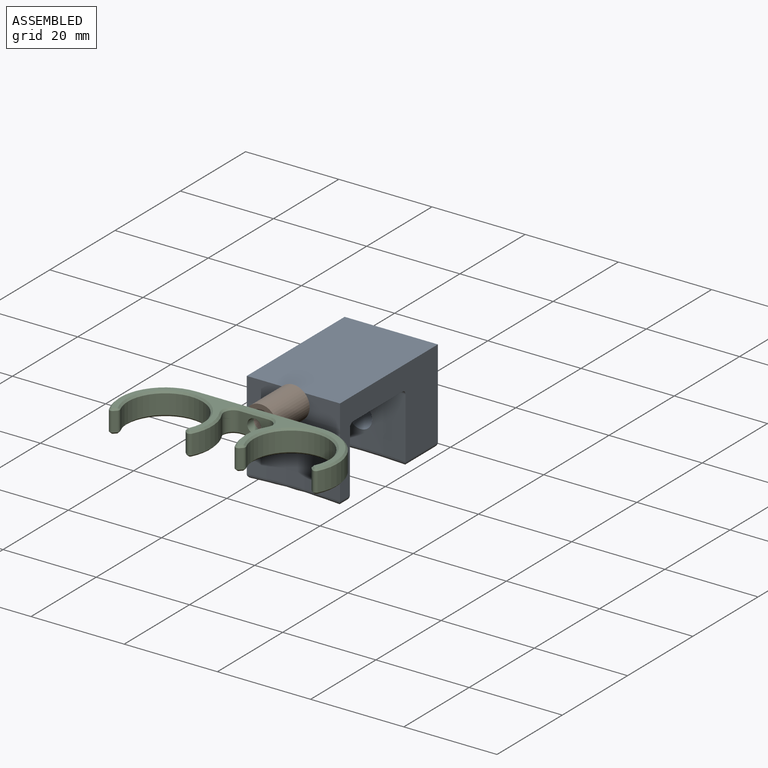
[diagram: assembled view]
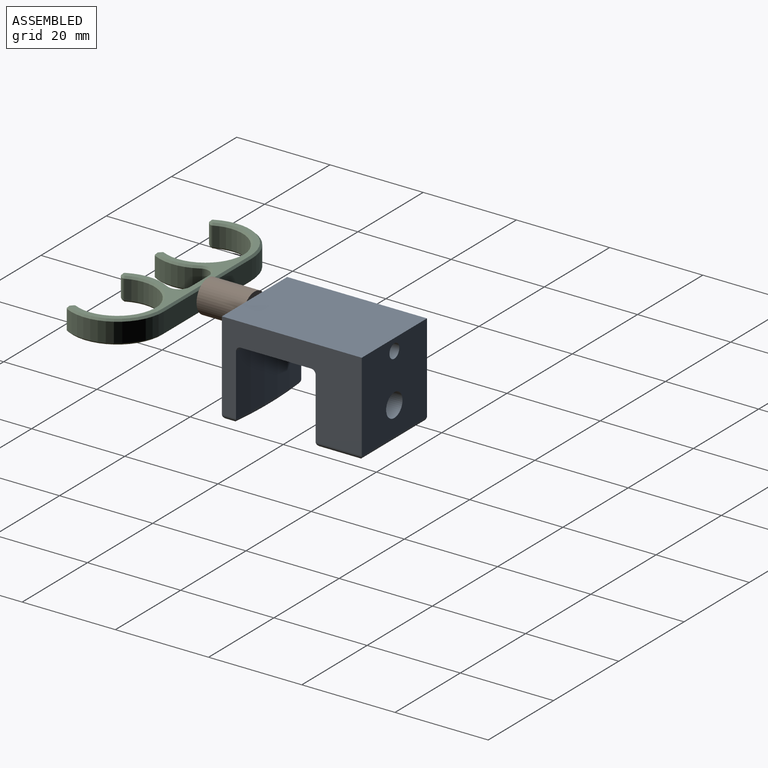
[diagram: assembled view, second angle]
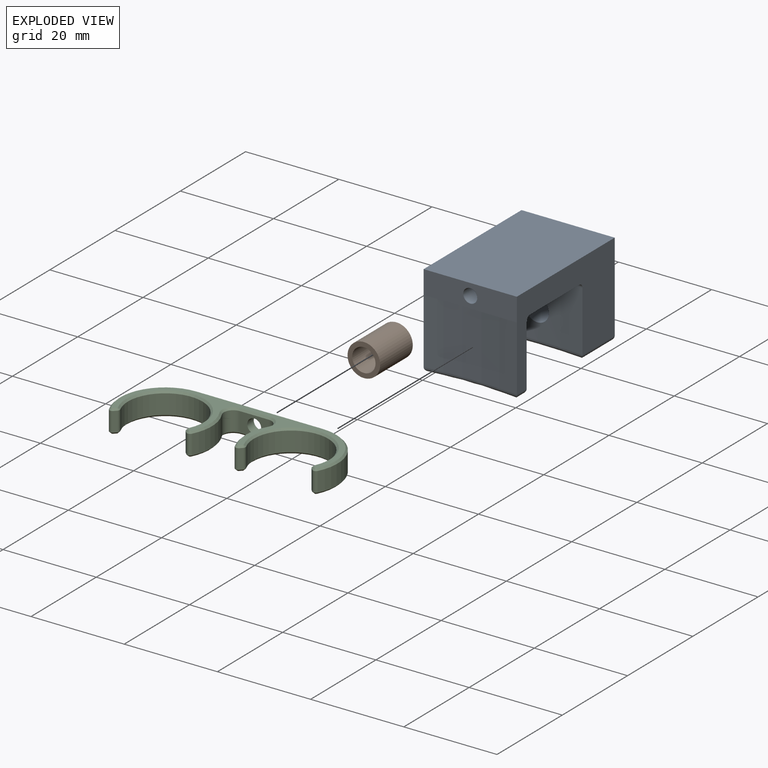
[diagram: exploded view]
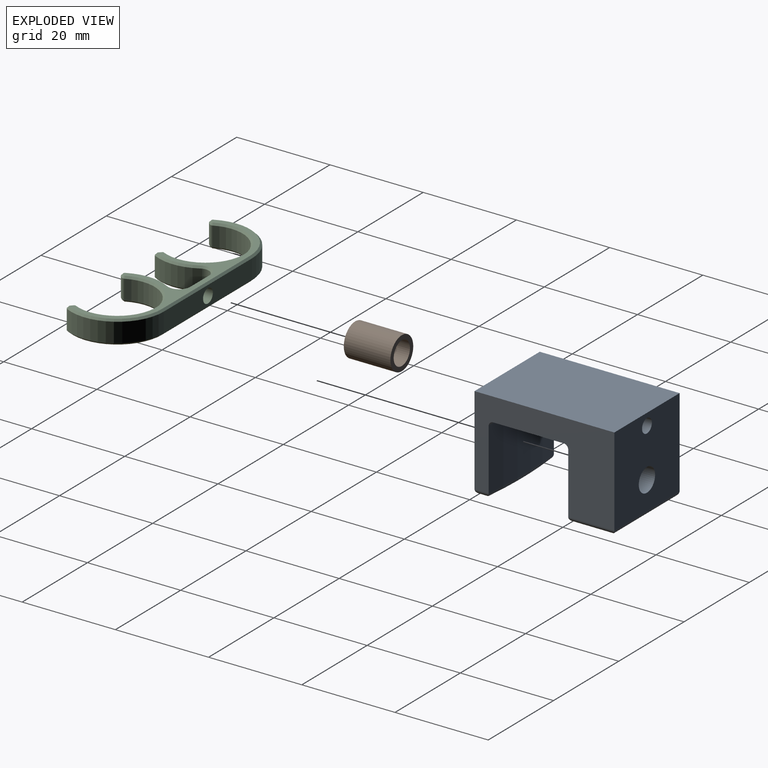
[diagram: exploded view, second angle]
ASSEMBLY  parts=3 mates=2
PART A: 24 faces, bbox 20.6x30x20 mm
  f0: cylinder r=105mm len=20mm, axis (0,0,1), area 240.8mm2, adj f3,f5,f13,f14,f16
  f1: plane 20x15.56mm, normal (0,0,-1), area 300.5mm2, adj f3,f5,f14,f19
  f2: plane 20x0.59mm, normal (0,0,-1), area 7.9mm2, adj f6,f9
  f3: plane 30.05x19.05mm, normal (1,0,0), area 331.1mm2, adj f0,f1,f4,f6,f7,f8,f9,f14
  f4: plane 20x19mm, normal (0,1,0), area 353.3mm2, adj f3,f5,f7,f12,f13,f17
  f5: plane 30.05x19.05mm, normal (-1,0,0), area 331.1mm2, adj f0,f1,f4,f6,f7,f8,f9,f14
  f6: plane 20x5mm, normal (0,-1,0), area 92.9mm2, adj f2,f3,f5,f7,f12
  f7: plane 30x20mm, normal (0,0,1), area 600mm2, adj f3,f4,f5,f6
  f8: cylinder r=88mm len=20mm, axis (0,0,1), area 260.6mm2, adj f3,f5,f19,f22
  f9: cylinder r=85mm len=20mm, axis (0,0,1), area 280.6mm2, adj f2,f3,f5,f21
  f10: plane 18x1.47mm, normal (0,0,-1), area 18mm2, adj f20,f21,f22,f23
  f11: plane 18x7.79mm, normal (0,0,-1), area 135.7mm2, adj f15,f16,f17,f18
  f12: cylinder r=1.5mm len=30mm, axis (0,-1,0), area 282.7mm2, adj f4,f6
  f13: cylinder r=2.5mm len=9.44mm, axis (0,1,0), area 148mm2, adj f0,f4
  f14: torus R=104mm, axis (0,0,1), area 31.5mm2, adj f0,f1,f3,f5
  f15: cylinder r=1mm len=9.89mm, axis (0,-1,0), area 14.3mm2, adj f3,f11,f16,f17
  f16: torus R=106mm, axis (0,0,-1), area 30.3mm2, adj f0,f11,f15,f18
  f17: cylinder r=1mm len=20mm, axis (1,0,0), area 30.3mm2, adj f4,f11,f15,f18
  f18: cylinder r=1mm len=9.89mm, axis (0,1,0), area 14.3mm2, adj f5,f11,f16,f17
  f19: torus R=89mm, axis (0,0,1), area 31.4mm2, adj f1,f3,f5,f8
  f20: cylinder r=1mm len=3.02mm, axis (0,1,0), area 3.6mm2, adj f5,f10,f21,f22
  f21: torus R=86mm, axis (0,0,-1), area 30.3mm2, adj f9,f10,f20,f23
  f22: torus R=87mm, axis (0,0,-1), area 30.3mm2, adj f8,f10,f20,f23
  f23: cylinder r=1mm len=3.02mm, axis (0,-1,0), area 3.6mm2, adj f3,f10,f21,f22
PART B: 4 faces, bbox 7x10x7 mm
  f0: cylinder r=3.5mm len=10mm, axis (0,1,0), area 219.9mm2, adj f1,f2
  f1: plane 7x7mm, normal (0,-1,0), area 18.8mm2, adj f0,f3
  f2: plane 7x7mm, normal (0,1,0), area 18.8mm2, adj f0,f3
  f3: cylinder r=2.5mm len=10mm, axis (0,-1,0), area 157.1mm2, adj f1,f2
PART C: 69 faces, bbox 47x14.9x5 mm
  f0: plane 4.2x0.45mm, normal (-0.71,0.71,0), area 2.7mm2, adj f14,f17,f41,f63
  f1: cylinder r=8mm len=16mm, axis (0,0,-1), area 135.4mm2, adj f14,f15,f37,f59
  f2: plane 4.2x0.45mm, normal (0.71,0.71,0), area 2.7mm2, adj f15,f16,f33,f55
  f3: cylinder r=10mm len=14.5mm, axis (0,0,-1), area 85.6mm2, adj f4,f16,f29,f51
  f4: plane 27x4.2mm, normal (0,-1,0), area 106.3mm2, adj f3,f5,f27,f49,f68
  f5: cylinder r=10mm len=14.5mm, axis (0,0,-1), area 85.6mm2, adj f4,f21,f25,f47
  f6: plane 4.2x0.45mm, normal (-0.71,0.71,0), area 2.7mm2, adj f18,f21,f26,f48
  f7: cylinder r=8mm len=16mm, axis (0,0,-1), area 135.4mm2, adj f18,f19,f30,f52
  f8: plane 4.2x0.45mm, normal (0.71,0.71,0), area 2.7mm2, adj f19,f20,f34,f56
  f9: cylinder r=10mm len=9.5mm, axis (0,0,-1), area 41.6mm2, adj f20,f23,f38,f60
  f10: plane 6.22x4.2mm, normal (0,1,0), area 19mm2, adj f22,f23,f42,f64,f68
  f11: cylinder r=10mm len=9.5mm, axis (0,0,-1), area 41.6mm2, adj f17,f22,f45,f67
  f12: plane 46.2x14.09mm, normal (0,0,1), area 124.9mm2, adj f24,f25,f26,f27,f28,f29,f30,f31
  f13: plane 46.2x14.09mm, normal (0,0,-1), area 124.9mm2, adj f46,f47,f48,f49,f50,f51,f52,f53
  f14: cylinder r=0.7mm len=4.2mm, axis (0,0,-1), area 3.6mm2, adj f0,f1,f39,f61
  f15: cylinder r=0.7mm len=4.2mm, axis (0,0,-1), area 3.6mm2, adj f1,f2,f35,f57
  f16: cylinder r=0.7mm len=4.2mm, axis (0,0,-1), area 5.6mm2, adj f2,f3,f31,f53
  f17: cylinder r=0.7mm len=4.2mm, axis (0,0,-1), area 5.6mm2, adj f0,f11,f43,f65
  f18: cylinder r=0.7mm len=4.2mm, axis (0,0,-1), area 3.6mm2, adj f6,f7,f28,f50
  f19: cylinder r=0.7mm len=4.2mm, axis (0,0,-1), area 3.6mm2, adj f7,f8,f32,f54
  f20: cylinder r=0.7mm len=4.2mm, axis (0,0,-1), area 5.6mm2, adj f8,f9,f36,f58
  f21: cylinder r=0.7mm len=4.2mm, axis (0,0,-1), area 5.6mm2, adj f5,f6,f24,f46
  f22: cylinder r=2mm len=4.2mm, axis (0,0,-1), area 17.6mm2, adj f10,f11,f44,f66
  f23: cylinder r=2mm len=4.2mm, axis (0,0,-1), area 17.6mm2, adj f9,f10,f40,f62
  f24: cone r=0.3mm half-angle=45deg, axis (0,0,-1), area 0.5mm2, adj f12,f21,f25,f26
  f25: cone r=10mm half-angle=45deg, axis (0,0,-1), area 11.3mm2, adj f5,f12,f24,f27
  f26: plane 0.73x0.73mm, normal (-0.5,0.5,0.71), area 0.4mm2, adj f6,f12,f24,f28
  f27: plane 27x0.4mm, normal (0,-0.71,0.71), area 15.3mm2, adj f4,f12,f25,f29
  f28: cone r=0.3mm half-angle=45deg, axis (0,0,-1), area 0.3mm2, adj f12,f18,f26,f30
  f29: cone r=10mm half-angle=45deg, axis (0,0,-1), area 11.3mm2, adj f3,f12,f27,f31
  f30: cone r=8.4mm half-angle=45deg, axis (0,0,1), area 18.7mm2, adj f7,f12,f28,f32
  f31: cone r=0.3mm half-angle=45deg, axis (0,0,-1), area 0.5mm2, adj f12,f16,f29,f33
  f32: cone r=0.3mm half-angle=45deg, axis (0,0,-1), area 0.3mm2, adj f12,f19,f30,f34
  f33: plane 0.73x0.73mm, normal (0.5,0.5,0.71), area 0.4mm2, adj f2,f12,f31,f35
  f34: plane 0.73x0.73mm, normal (0.5,0.5,0.71), area 0.4mm2, adj f8,f12,f32,f36
  f35: cone r=0.3mm half-angle=45deg, axis (0,0,-1), area 0.3mm2, adj f12,f15,f33,f37
  f36: cone r=0.3mm half-angle=45deg, axis (0,0,-1), area 0.5mm2, adj f12,f20,f34,f38
  f37: cone r=8.4mm half-angle=45deg, axis (0,0,1), area 18.7mm2, adj f1,f12,f35,f39
  f38: cone r=10mm half-angle=45deg, axis (0,0,-1), area 5.5mm2, adj f9,f12,f36,f40
  f39: cone r=0.3mm half-angle=45deg, axis (0,0,-1), area 0.3mm2, adj f12,f14,f37,f41
  f40: cone r=2.4mm half-angle=45deg, axis (0,0,1), area 2.6mm2, adj f12,f23,f38,f42
  f41: plane 0.73x0.73mm, normal (-0.5,0.5,0.71), area 0.4mm2, adj f0,f12,f39,f43
  f42: plane 6.22x0.4mm, normal (0,0.71,0.71), area 3.5mm2, adj f10,f12,f40,f44
  f43: cone r=0.3mm half-angle=45deg, axis (0,0,-1), area 0.5mm2, adj f12,f17,f41,f45
  f44: cone r=2.4mm half-angle=45deg, axis (0,0,1), area 2.6mm2, adj f12,f22,f42,f45
  f45: cone r=10mm half-angle=45deg, axis (0,0,-1), area 5.5mm2, adj f11,f12,f43,f44
  f46: cone r=0.3mm half-angle=45deg, axis (0,0,1), area 0.5mm2, adj f13,f21,f47,f48
  f47: cone r=9.6mm half-angle=45deg, axis (0,0,1), area 11.3mm2, adj f5,f13,f46,f49
  f48: plane 0.73x0.73mm, normal (-0.5,0.5,-0.71), area 0.4mm2, adj f6,f13,f46,f50
  f49: plane 27x0.4mm, normal (0,-0.71,-0.71), area 15.3mm2, adj f4,f13,f47,f51
  f50: cone r=0.3mm half-angle=45deg, axis (0,0,1), area 0.3mm2, adj f13,f18,f48,f52
  f51: cone r=9.6mm half-angle=45deg, axis (0,0,1), area 11.3mm2, adj f3,f13,f49,f53
  f52: cone r=8mm half-angle=45deg, axis (0,0,-1), area 18.7mm2, adj f7,f13,f50,f54
  f53: cone r=0.3mm half-angle=45deg, axis (0,0,1), area 0.5mm2, adj f13,f16,f51,f55
  f54: cone r=0.3mm half-angle=45deg, axis (0,0,1), area 0.3mm2, adj f13,f19,f52,f56
  f55: plane 0.73x0.73mm, normal (0.5,0.5,-0.71), area 0.4mm2, adj f2,f13,f53,f57
  f56: plane 0.73x0.73mm, normal (0.5,0.5,-0.71), area 0.4mm2, adj f8,f13,f54,f58
  f57: cone r=0.3mm half-angle=45deg, axis (0,0,1), area 0.3mm2, adj f13,f15,f55,f59
  f58: cone r=0.3mm half-angle=45deg, axis (0,0,1), area 0.5mm2, adj f13,f20,f56,f60
  f59: cone r=8mm half-angle=45deg, axis (0,0,-1), area 18.7mm2, adj f1,f13,f57,f61
  f60: cone r=9.6mm half-angle=45deg, axis (0,0,1), area 5.5mm2, adj f9,f13,f58,f62
  f61: cone r=0.3mm half-angle=45deg, axis (0,0,1), area 0.3mm2, adj f13,f14,f59,f63
  f62: cone r=2.4mm half-angle=45deg, axis (0,0,-1), area 2.6mm2, adj f13,f23,f60,f64
  f63: plane 0.73x0.73mm, normal (-0.5,0.5,-0.71), area 0.4mm2, adj f0,f13,f61,f65
  f64: plane 6.22x0.4mm, normal (0,0.71,-0.71), area 3.5mm2, adj f10,f13,f62,f66
  f65: cone r=0.3mm half-angle=45deg, axis (0,0,1), area 0.5mm2, adj f13,f17,f63,f67
  f66: cone r=2.4mm half-angle=45deg, axis (0,0,-1), area 2.6mm2, adj f13,f22,f64,f67
  f67: cone r=9.6mm half-angle=45deg, axis (0,0,1), area 5.5mm2, adj f11,f13,f65,f66
  f68: cylinder r=1.5mm len=3mm, axis (0,1,0), area 18.8mm2, adj f4,f10
PLACE A t=(-10.34,-18.39,10.78)mm
PLACE B t=(-10.34,-38.39,13.28)mm
PLACE C rot(axis=(1,0,0),180deg) t=(-10.34,-53.39,15.78)mm
MATE fastened B.f0 <-> C.f68  axis (0,-1,0) through (-10.34,-43.39,13.28)mm
MATE fastened B.f0 <-> A.f12  axis (0,1,0) through (-10.34,-33.39,13.28)mm
